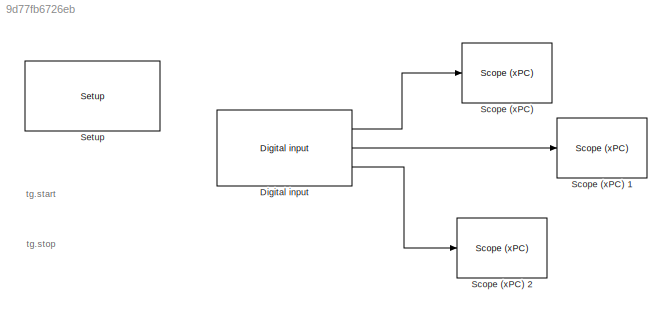
MODEL slx_9d77fb6726eb
KIND model
BLOCK [Reference] Digital input  REF=speedgoatlib_IO101/Digital input
  Ports = [0, 3]
  SourceBlock = speedgoatlib_IO101/Digital input
  SourceType = di_IO101
  groupChannel = Lower
  id = 1
  lowerChannel = [1,2,3]
  lowerDIDebounce = [0,0,0]
  pciSlot = -1
  ts = 0.001
  upperChannel = 1
  upperDIDebounce = 0
BLOCK [Reference] Scope (xPC)   REF=xpclib/Misc./Scope (xPC) 
  Ports = [1]
  SourceBlock = xpclib/Misc./Scope (xPC)
  SourceType = xpcscopeblock
  autorestart = off
  autostart = on
  dynamicfilemode = off
  filename = data.dat
  formatstr = '%15.6f'
  grid = on
  interleave = 1
  maxwritefilesize = 512*1024^2
  mode = Lazy
  noprepostsamples = -50
  nosamples = 600
  scopeno = 1
  scopetype = Target
  triggerlevel = 0.5
  triggermode = Signal triggering
  triggersample = 0
  triggerscope = 1
  triggersignal = 1
  triggerslope = Rising
  viewmode = Graphical redraw
  writesize = 512
  ylimits = [0,0]
BLOCK [Reference] Scope (xPC) 1  REF=xpclib/Misc./Scope (xPC) 
  Ports = [1]
  SourceBlock = xpclib/Misc./Scope (xPC)
  SourceType = xpcscopeblock
  autorestart = off
  autostart = on
  dynamicfilemode = off
  filename = data.dat
  formatstr = '%15.6f'
  grid = on
  interleave = 1
  maxwritefilesize = 512*1024^2
  mode = Lazy
  noprepostsamples = -50
  nosamples = 600
  scopeno = 2
  scopetype = Target
  triggerlevel = 0
  triggermode = Scope triggering
  triggersample = 0
  triggerscope = 1
  triggersignal = 1
  triggerslope = Either
  viewmode = Graphical redraw
  writesize = 512
  ylimits = [0,0]
BLOCK [Reference] Scope (xPC) 2  REF=xpclib/Misc./Scope (xPC) 
  Ports = [1]
  SourceBlock = xpclib/Misc./Scope (xPC)
  SourceType = xpcscopeblock
  autorestart = off
  autostart = on
  dynamicfilemode = off
  filename = data.dat
  formatstr = '%15.6f'
  grid = on
  interleave = 1
  maxwritefilesize = 512*1024^2
  mode = Lazy
  noprepostsamples = -50
  nosamples = 600
  scopeno = 3
  scopetype = Target
  triggerlevel = 0
  triggermode = Scope triggering
  triggersample = 0
  triggerscope = 1
  triggersignal = 1
  triggerslope = Either
  viewmode = Graphical redraw
  writesize = 512
  ylimits = [0,0]
BLOCK [Reference] Setup  REF=speedgoatlib_IO101/Setup
  Ports = []
  SourceBlock = speedgoatlib_IO101/Setup
  SourceType = setup_IO101
  adAcqMode = Standard
  adCoupling = Single-ended
  adNumChannel = 32
  adRange = -10 .. 10 Volts
  adStartChannel = 1
  daChannel = [1:8]
  daInitValue = [0]
  daReset = [1]
  group = Digital setup lower channel
  id = 1
  lowerChannel = 1:3
  lowerDIDebounce = 0
  lowerDOInitValues = [0]
  lowerDOReset = [1]
  lowerDirection = Input
  pciSlot = -1
  upperChannel = 1
  upperDIDebounce = 0
  upperDOInitValues = 0
  upperDOReset = 0
  upperDirection = Output
ANNOTATION (root): tg.start
ANNOTATION (root): tg.stop
LINE Digital input:1 -> Scope (xPC) :1
LINE Digital input:2 -> Scope (xPC) 1:1
LINE Digital input:3 -> Scope (xPC) 2:1
